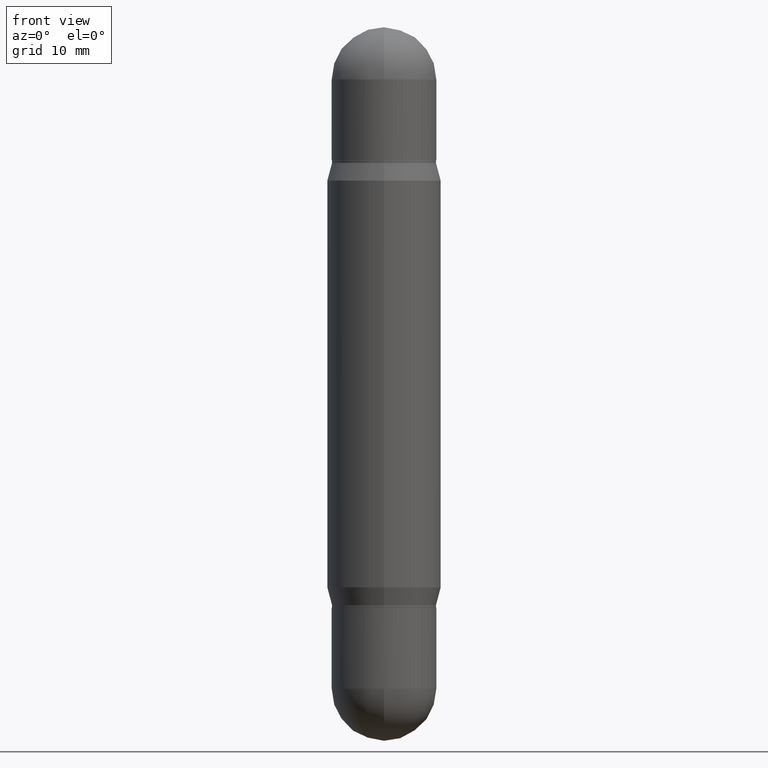
[diagram: clean part render]
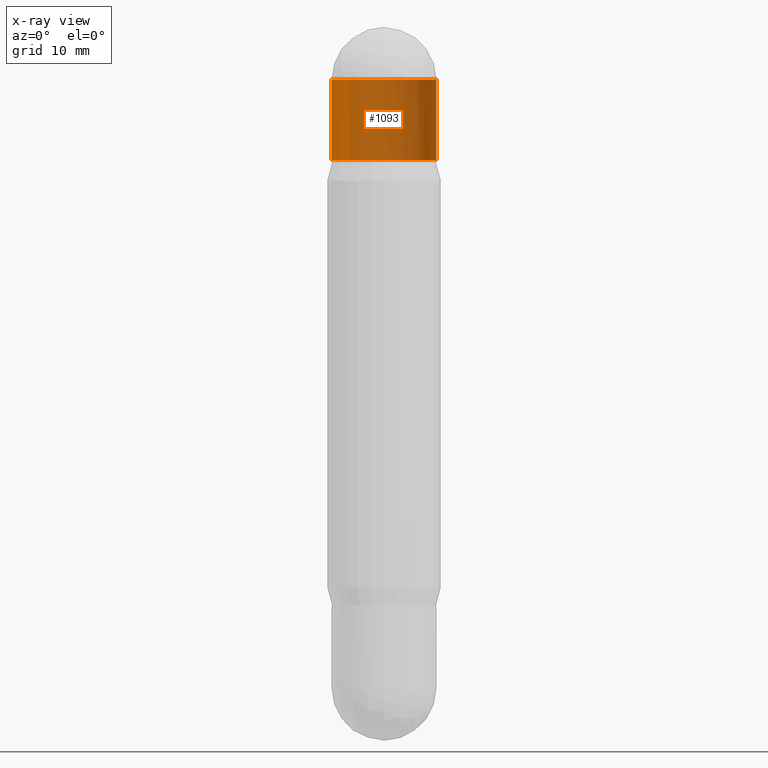
[diagram: x-ray — body ghosted, one internal face saturated and labeled with its STEP entity id]
A machine part, front view, then the same camera in x-ray: the body is ghosted and one INTERNAL B-rep face — a face not visible from any outside direction — is saturated and labeled: STEP entity #1093.
In plain terms, the highlighted cylindrical surface (partial cylindrical patch) has radius 5.5004 mm, axis along (-0, -0, -1).
Its self-contained STEP definition (entity closure, byte-faithful):
#69 = LINE ( 'NONE', #144, #833 ) ;
#90 = DIRECTION ( 'NONE',  ( 1.000000000000000000, -6.982962677686265922E-15, 0.000000000000000000 ) ) ;
#93 = CARTESIAN_POINT ( 'NONE',  ( -0.2165500000000000758, 1.323835882843561036E-16, -0.5512000000000001343 ) ) ;
#120 = EDGE_CURVE ( 'NONE', #437, #269, #923, .T. ) ;
#144 = CARTESIAN_POINT ( 'NONE',  ( -0.2165500000000001035, -8.806485006296660292E-15, -2.952799999999999869 ) ) ;
#161 = EDGE_CURVE ( 'NONE', #657, #1032, #69, .T. ) ;
#163 = CARTESIAN_POINT ( 'NONE',  ( 6.691414020924079206E-29, -7.710307624460063053E-16, -0.2165500000000001868 ) ) ;
#225 = ORIENTED_EDGE ( 'NONE', *, *, #404, .T. ) ;
#269 = VERTEX_POINT ( 'NONE', #701 ) ;
#272 = FACE_OUTER_BOUND ( 'NONE', #762, .T. ) ;
#312 = ORIENTED_EDGE ( 'NONE', *, *, #120, .T. ) ;
#320 = DIRECTION ( 'NONE',  ( -2.445468806185136877E-29, -3.479614466977828648E-15, -1.000000000000000000 ) ) ;
#339 = ORIENTED_EDGE ( 'NONE', *, *, #161, .F. ) ;
#342 = ORIENTED_EDGE ( 'NONE', *, *, #517, .F. ) ;
#370 = DIRECTION ( 'NONE',  ( 2.445468806185136597E-29, 3.479614466977828254E-15, 1.000000000000000000 ) ) ;
#389 = CARTESIAN_POINT ( 'NONE',  ( -0.2165500000000001035, 1.323835882843576813E-16, -0.2165500000000001868 ) ) ;
#404 = EDGE_CURVE ( 'NONE', #269, #1032, #775, .T. ) ;
#437 = VERTEX_POINT ( 'NONE', #451 ) ;
#451 = CARTESIAN_POINT ( 'NONE',  ( 0.2165500000000001035, -2.865417820986029909E-15, -0.2165500000000001868 ) ) ;
#517 = EDGE_CURVE ( 'NONE', #437, #1017, #583, .T. ) ;
#549 = CARTESIAN_POINT ( 'NONE',  ( 6.691414020924079206E-29, -7.710307624460063053E-16, -0.2165500000000001868 ) ) ;
#583 = CIRCLE ( 'NONE', #1031, 0.2165500000000001035 ) ;
#624 = CYLINDRICAL_SURFACE ( 'NONE', #903, 0.2165500000000001035 ) ;
#651 = DIRECTION ( 'NONE',  ( -2.445468806185136877E-29, -3.479614466977828648E-15, -1.000000000000000000 ) ) ;
#655 = CARTESIAN_POINT ( 'NONE',  ( 0.2165500000000001035, -1.180428641556704882E-14, -2.952799999999999869 ) ) ;
#657 = VERTEX_POINT ( 'NONE', #389 ) ;
#701 = CARTESIAN_POINT ( 'NONE',  ( 0.2165500000000000758, -3.447644311673096437E-15, -0.5512000000000001343 ) ) ;
#711 = CIRCLE ( 'NONE', #851, 0.2165500000000001035 ) ;
#729 = DIRECTION ( 'NONE',  ( 1.000000000000000000, -6.982962677686266711E-15, 0.000000000000000000 ) ) ;
#757 = EDGE_CURVE ( 'NONE', #1017, #657, #711, .T. ) ;
#759 = VECTOR ( 'NONE', #320, 39.37007874015748143 ) ;
#762 = EDGE_LOOP ( 'NONE', ( #339, #986, #342, #312, #225 ) ) ;
#775 = CIRCLE ( 'NONE', #981, 0.2165500000000000758 ) ;
#812 = DIRECTION ( 'NONE',  ( 2.445468806185136597E-29, 3.479614466977828254E-15, 1.000000000000000000 ) ) ;
#833 = VECTOR ( 'NONE', #651, 39.37007874015748143 ) ;
#851 = AXIS2_PLACEMENT_3D ( 'NONE', #163, #861, #90 ) ;
#861 = DIRECTION ( 'NONE',  ( 2.445468806185136597E-29, 3.479614466977828254E-15, 1.000000000000000000 ) ) ;
#881 = DIRECTION ( 'NONE',  ( -2.445468806185136597E-29, -3.479614466977828254E-15, -1.000000000000000000 ) ) ;
#882 = DIRECTION ( 'NONE',  ( 1.000000000000000000, -6.982962677686265922E-15, 0.000000000000000000 ) ) ;
#888 = DIRECTION ( 'NONE',  ( 1.000000000000000000, -6.982962677686270655E-15, 0.000000000000000000 ) ) ;
#903 = AXIS2_PLACEMENT_3D ( 'NONE', #963, #881, #888 ) ;
#923 = LINE ( 'NONE', #655, #759 ) ;
#950 = CARTESIAN_POINT ( 'NONE',  ( 1.512160567853029651E-15, 0.2165499999999994929, -0.2165500000000009362 ) ) ;
#963 = CARTESIAN_POINT ( 'NONE',  ( 0.000000000000000000, -1.029212584771408642E-14, -2.952799999999999869 ) ) ;
#981 = AXIS2_PLACEMENT_3D ( 'NONE', #1062, #370, #729 ) ;
#986 = ORIENTED_EDGE ( 'NONE', *, *, #757, .F. ) ;
#1017 = VERTEX_POINT ( 'NONE', #950 ) ;
#1031 = AXIS2_PLACEMENT_3D ( 'NONE', #549, #812, #882 ) ;
#1032 = VERTEX_POINT ( 'NONE', #93 ) ;
#1062 = CARTESIAN_POINT ( 'NONE',  ( 5.873037884934223228E-29, -1.935483743820134825E-15, -0.5512000000000001343 ) ) ;
#1093 = ADVANCED_FACE ( 'NONE', ( #272 ), #624, .T. ) ;